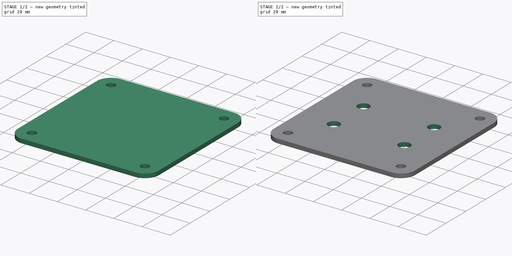
[diagram: build sequence overview — one tinted view per stage of 2, left to right]
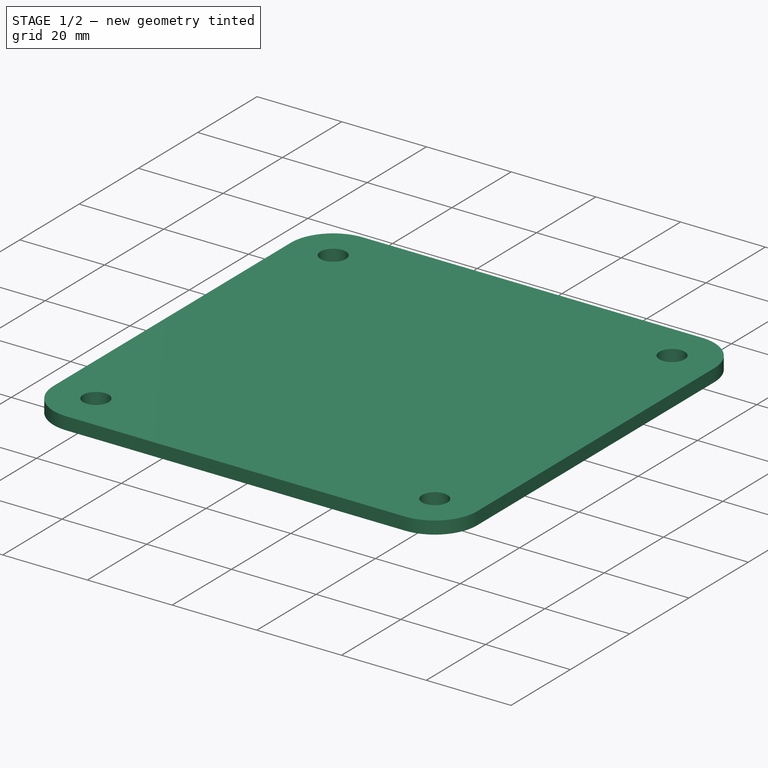
[diagram: stage 1 of 2 — iso view after this stage's code; geometry added in this stage tinted green]
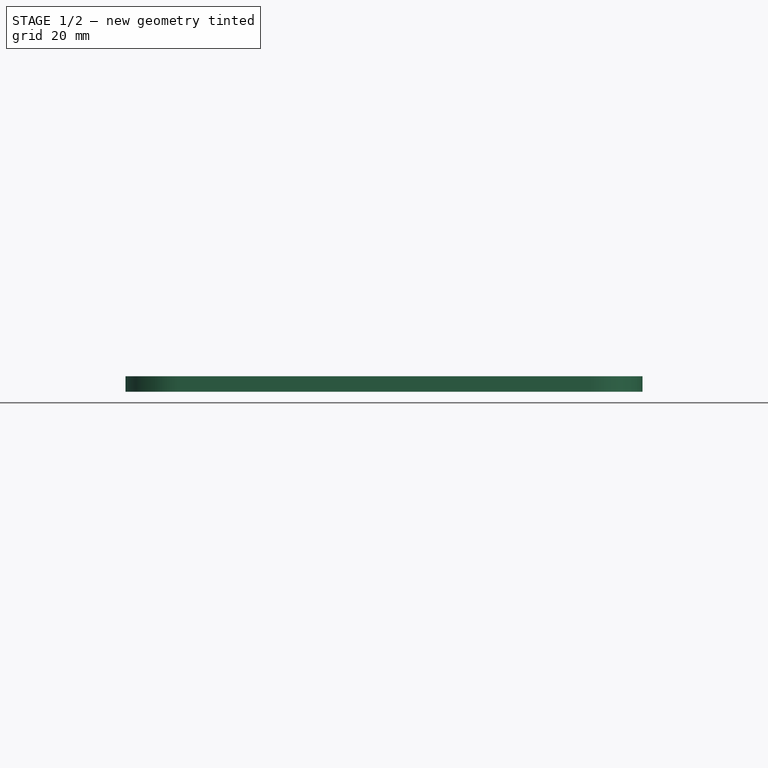
[diagram: stage 1 of 2 — front view after this stage's code; geometry added in this stage tinted green]
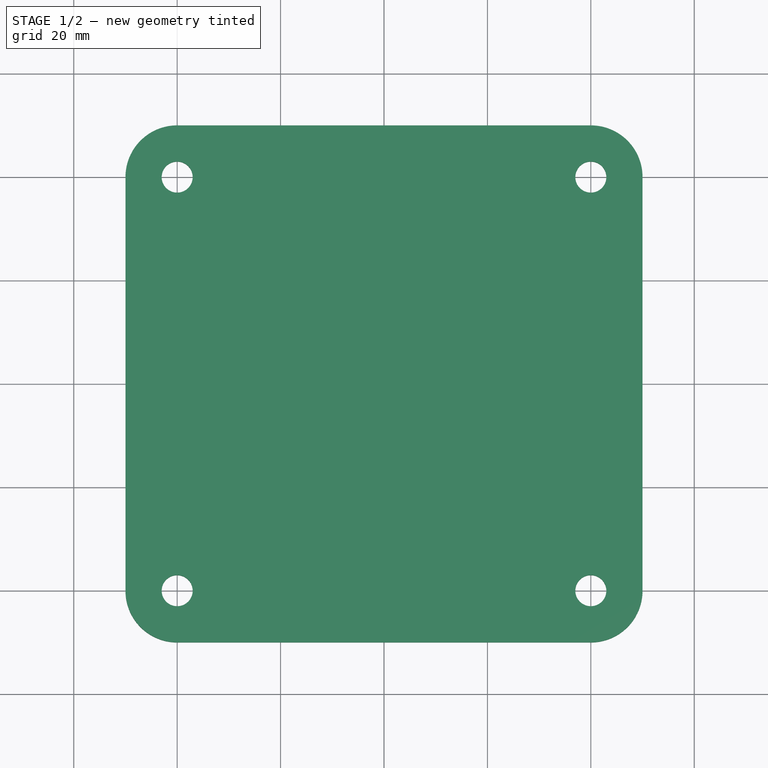
[diagram: stage 1 of 2 — top view after this stage's code; geometry added in this stage tinted green]
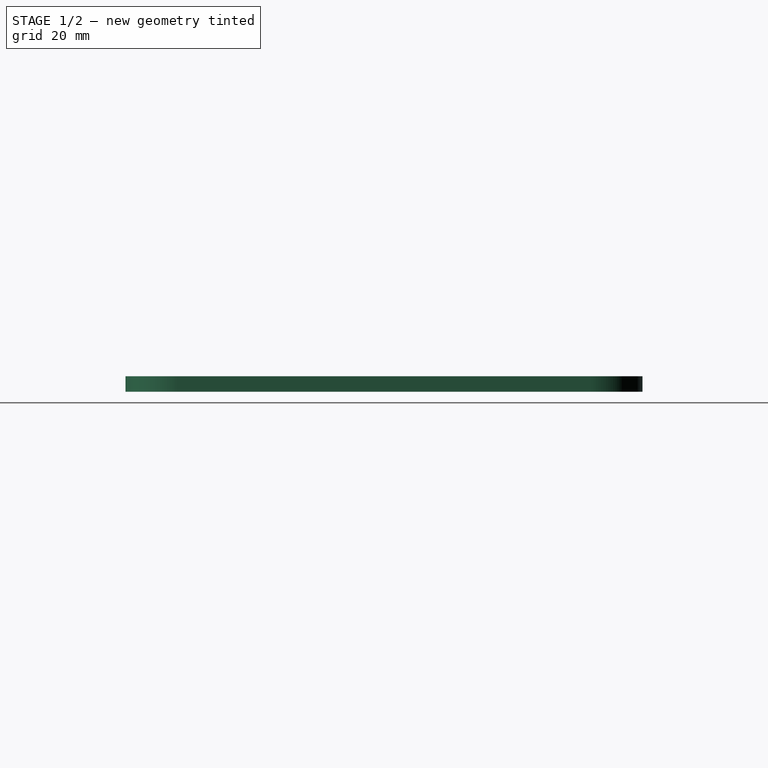
[diagram: stage 1 of 2 — right view after this stage's code; geometry added in this stage tinted green]
FCSTD DOCUMENT  (FreeCAD 0.19R24291 (Git))
Label: speaker_jack_panel
License: All rights reserved
LicenseURL: http://en.wikipedia.org/wiki/All_rights_reserved
objects: Sketcher::SketchObject×3, PartDesign::Pocket×2, PartDesign::Plane×1, PartDesign::Pad×1, PartDesign::Body×1
note: 11 computed .brp shape members not serialized (recipe doc carries the construction recipe); baked Part::Feature solids carry a one-line shape summary decoded from their .brp

FEATURE [Sketcher::SketchObject] Sketch  label="Panel S"
  FullyConstrained = true
  MapMode = 5
  Support = -> [XY_Plane]
  sketch-geometry (8):
    g0: LineSegment StartX=-40 StartY=50 StartZ=0 EndX=40 EndY=50 EndZ=0
    g1: LineSegment StartX=50 StartY=40 StartZ=0 EndX=50 EndY=-40 EndZ=0
    g2: LineSegment StartX=40 StartY=-50 StartZ=0 EndX=-40 EndY=-50 EndZ=0
    g3: LineSegment StartX=-50 StartY=-40 StartZ=0 EndX=-50 EndY=40 EndZ=0
    g4: ArcOfCircle CenterX=40 CenterY=40 CenterZ=0 NormalX=0 NormalY=0 NormalZ=1 AngleXU=0 Radius=10 StartAngle=1.415e-13 EndAngle=1.5708
    g5: ArcOfCircle CenterX=-40 CenterY=40 CenterZ=0 NormalX=0 NormalY=0 NormalZ=1 AngleXU=0 Radius=10 StartAngle=1.5708 EndAngle=3.14159
    g6: ArcOfCircle CenterX=-40 CenterY=-40 CenterZ=0 NormalX=0 NormalY=0 NormalZ=1 AngleXU=0 Radius=10 StartAngle=3.14159 EndAngle=4.71239
    g7: ArcOfCircle CenterX=40 CenterY=-40 CenterZ=0 NormalX=0 NormalY=0 NormalZ=1 AngleXU=0 Radius=10 StartAngle=4.71239 EndAngle=6.28319
  constraints (18):
    c: Horizontal(g2)
    c: Vertical(g3)
    c: Tangent(g0,g4) = 1.5708
    c: Tangent(g1,g4) = 1.5708
    c: Tangent(g0,g5) = 1.5708
    c: Tangent(g3,g5) = 1.5708
    c: Tangent(g3,g6) = 1.5708
    c: Tangent(g2,g6) = 1.5708
    c: Tangent(g2,g7) = 1.5708
    c: Tangent(g1,g7) = 1.5708
    c: Equal(g5,g4)
    c: Equal(g4,g7)
    c: Equal(g7,g6)
    c: DistanceX(g3,g1) = 100
    c: DistanceY(g2,g0) = 100
    c: Symmetric(g1,g1,g-1)
    c: Symmetric(g3,g1,g-2)
    c: Radius(g6) = 10
FEATURE [PartDesign::Plane] DatumPlane  label="Panel Surface"
  AttachmentOffset = pos=(0,0,3) rot=(0,0,1;0rad)
  Length = 120
  MapMode = 5
  Placement = pos=(0,0,3) rot=(0,0,1;0rad)
  ResizeMode = 0
  Support = -> [XY_Plane]
  Width = 120
FEATURE [PartDesign::Pad] Pad  label="Panel"
  Direction = (1,1,1)
  Length = 10
  Length2 = 100
  Profile = -> Sketch
  Type = 3
  UpToFace = -> DatumPlane
FEATURE [Sketcher::SketchObject] Sketch001  label="Mounting Holes S"
  FullyConstrained = true
  MapMode = 5
  Placement = pos=(0,0,3) rot=(0,0,1;0rad)
  Support = -> [DatumPlane]
  sketch-geometry (8):
    g0: Circle CenterX=-40 CenterY=40 CenterZ=0 NormalX=0 NormalY=0 NormalZ=1 AngleXU=0 Radius=3
    g1: Circle CenterX=40 CenterY=40 CenterZ=0 NormalX=0 NormalY=0 NormalZ=1 AngleXU=0 Radius=3
    g2: Circle CenterX=-40 CenterY=-40 CenterZ=0 NormalX=0 NormalY=0 NormalZ=1 AngleXU=0 Radius=3
    g3: Circle CenterX=40 CenterY=-40 CenterZ=0 NormalX=0 NormalY=0 NormalZ=1 AngleXU=0 Radius=3
    g4: LineSegment StartX=-40 StartY=40 StartZ=0 EndX=40 EndY=40 EndZ=0
    g5: LineSegment StartX=40 StartY=40 StartZ=0 EndX=40 EndY=-40 EndZ=0
    g6: LineSegment StartX=40 StartY=-40 StartZ=0 EndX=-40 EndY=-40 EndZ=0
    g7: LineSegment StartX=-40 StartY=-40 StartZ=0 EndX=-40 EndY=40 EndZ=0
  constraints (18):
    c: Equal(g0,g1)
    c: Equal(g1,g2)
    c: Equal(g2,g3)
    c: Diameter(g1) = 6
    c: Coincident(g4,g5)
    c: Coincident(g5,g6)
    c: Coincident(g6,g7)
    c: Coincident(g7,g4)
    c: Horizontal(g6)
    c: Vertical(g7)
    c: Symmetric(g4,g4,g-2)
    c: Symmetric(g4,g5,g-1)
    c: Coincident(g0,g4)
    c: Coincident(g1,g4)
    c: Coincident(g6,g2)
    c: Coincident(g5,g3)
    c: DistanceX(g4,g4) = 80
    c: DistanceY(g5,g5) = 80
FEATURE [PartDesign::Pocket] Pocket  label="Mounting Holes"
  BaseFeature = -> Pad
  Length = 0
  Length2 = 100
  Profile = -> Sketch001
  Type = 3
  UpToFace = -> XY_Plane
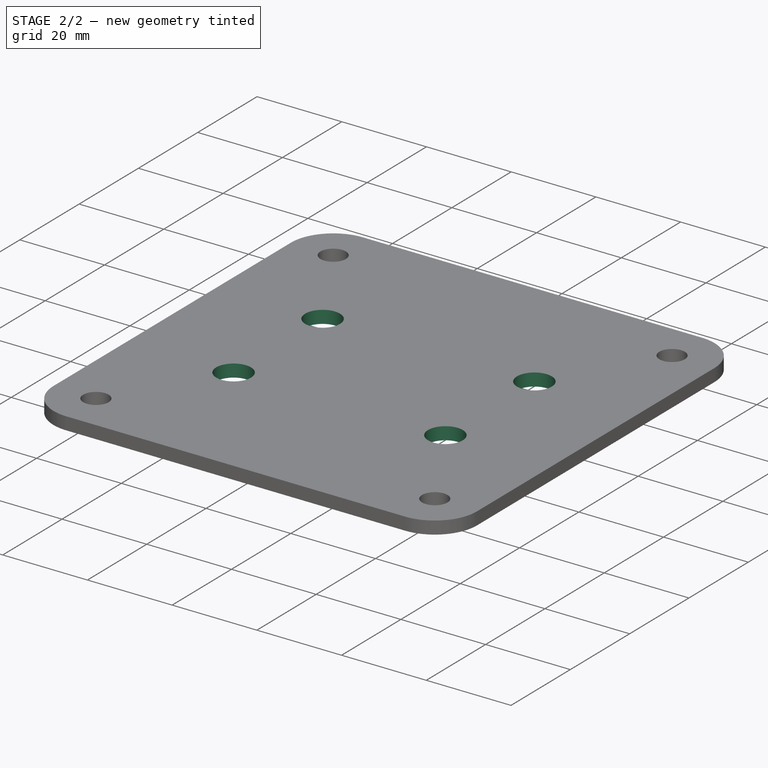
[diagram: stage 2 of 2 — iso view after this stage's code; geometry added in this stage tinted green]
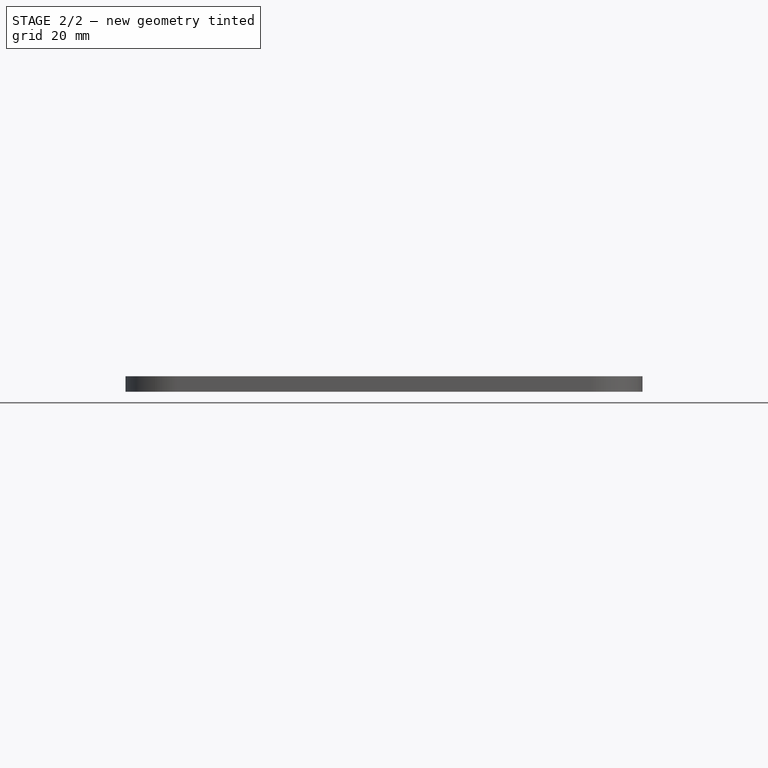
[diagram: stage 2 of 2 — front view after this stage's code; geometry added in this stage tinted green]
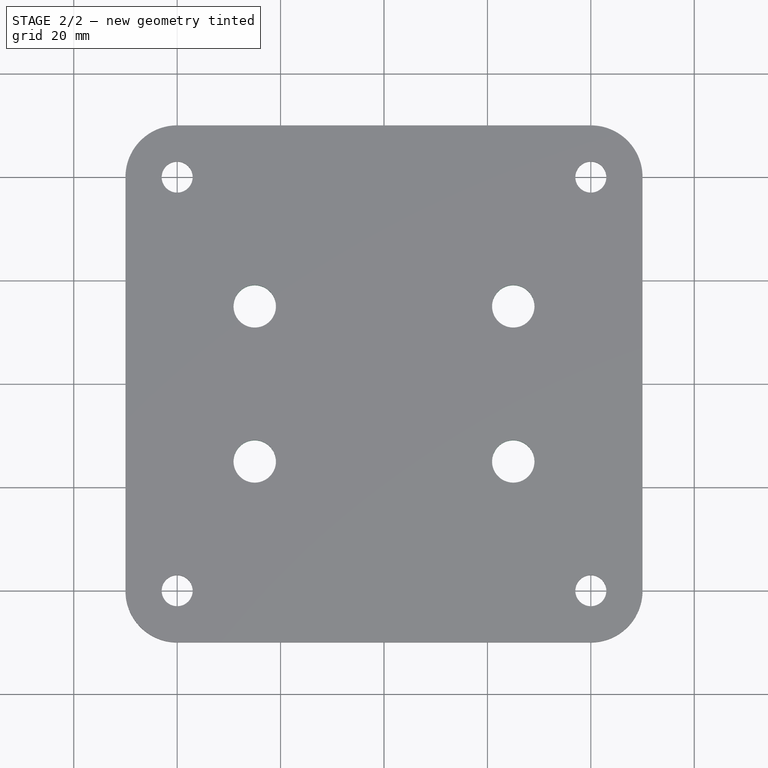
[diagram: stage 2 of 2 — top view after this stage's code; geometry added in this stage tinted green]
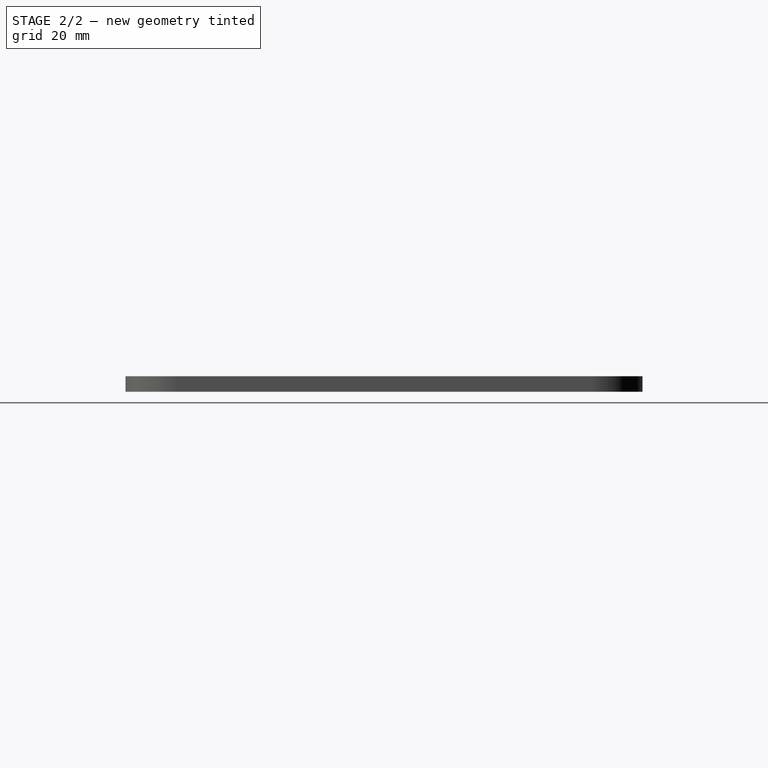
[diagram: stage 2 of 2 — right view after this stage's code; geometry added in this stage tinted green]
FEATURE [Sketcher::SketchObject] Sketch002  label="Jack Mounting Holes S"
  FullyConstrained = true
  MapMode = 5
  Placement = pos=(0,0,3) rot=(0,0,1;0rad)
  Support = -> [DatumPlane]
  sketch-geometry (8):
    g0: Circle CenterX=-25 CenterY=15 CenterZ=0 NormalX=0 NormalY=0 NormalZ=1 AngleXU=0 Radius=4.1
    g1: Circle CenterX=-25 CenterY=-15 CenterZ=0 NormalX=0 NormalY=0 NormalZ=1 AngleXU=0 Radius=4.1
    g2: Circle CenterX=25 CenterY=15 CenterZ=0 NormalX=0 NormalY=0 NormalZ=1 AngleXU=0 Radius=4.1
    g3: Circle CenterX=25 CenterY=-15 CenterZ=0 NormalX=0 NormalY=0 NormalZ=1 AngleXU=0 Radius=4.1
    g4: LineSegment StartX=-25 StartY=15 StartZ=0 EndX=25 EndY=15 EndZ=0
    g5: LineSegment StartX=25 StartY=15 StartZ=0 EndX=25 EndY=-15 EndZ=0
    g6: LineSegment StartX=25 StartY=-15 StartZ=0 EndX=-25 EndY=-15 EndZ=0
    g7: LineSegment StartX=-25 StartY=-15 StartZ=0 EndX=-25 EndY=15 EndZ=0
  constraints (18):
    c: Equal(g0,g1)
    c: Equal(g1,g2)
    c: Equal(g2,g3)
    c: Diameter(g2) = 8.2
    c: Coincident(g4,g5)
    c: Coincident(g5,g6)
    c: Coincident(g6,g7)
    c: Coincident(g7,g4)
    c: Horizontal(g6)
    c: Vertical(g7)
    c: Coincident(g2,g4)
    c: Coincident(g0,g4)
    c: Coincident(g1,g6)
    c: Coincident(g3,g5)
    c: Symmetric(g2,g3,g-1)
    c: Symmetric(g2,g0,g-2)
    c: DistanceY(g5,g5) = 30
    c: DistanceX(g4,g4) = 50
FEATURE [PartDesign::Pocket] Pocket001  label="Jack Mounting Holes"
  BaseFeature = -> Pocket
  Length = 0
  Length2 = 100
  Profile = -> Sketch002
  Type = 3
  UpToFace = -> XY_Plane
FEATURE [PartDesign::Body] Body  label="Speaker Jack Panel"
  Group = -> [DatumPlane,Sketch,Pad,Sketch001,Pocket,Sketch002,Pocket001]
  Origin = -> Origin
  Tip = -> Pocket001
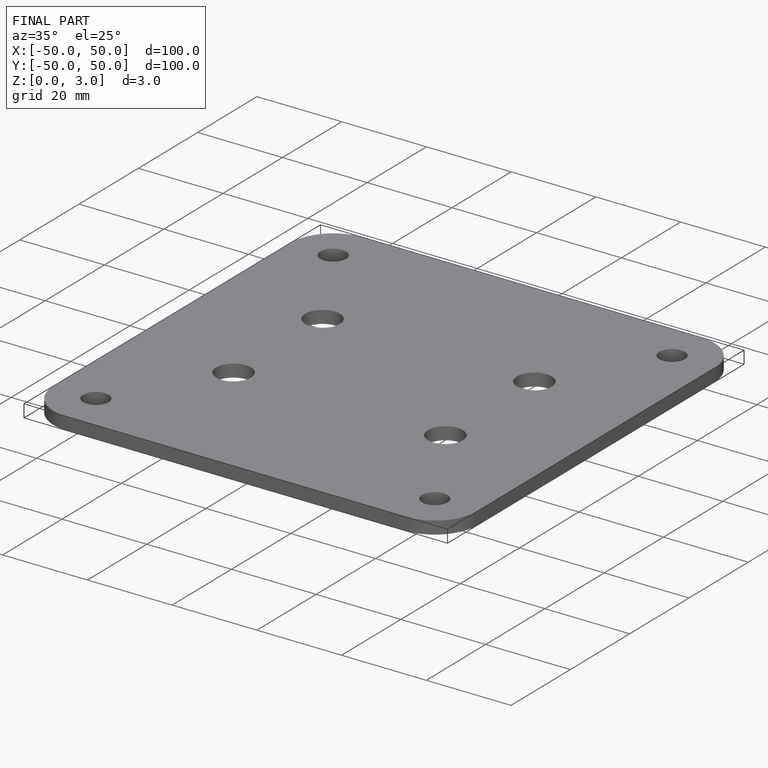
[diagram: finished part — iso view with bounding-box wireframe]
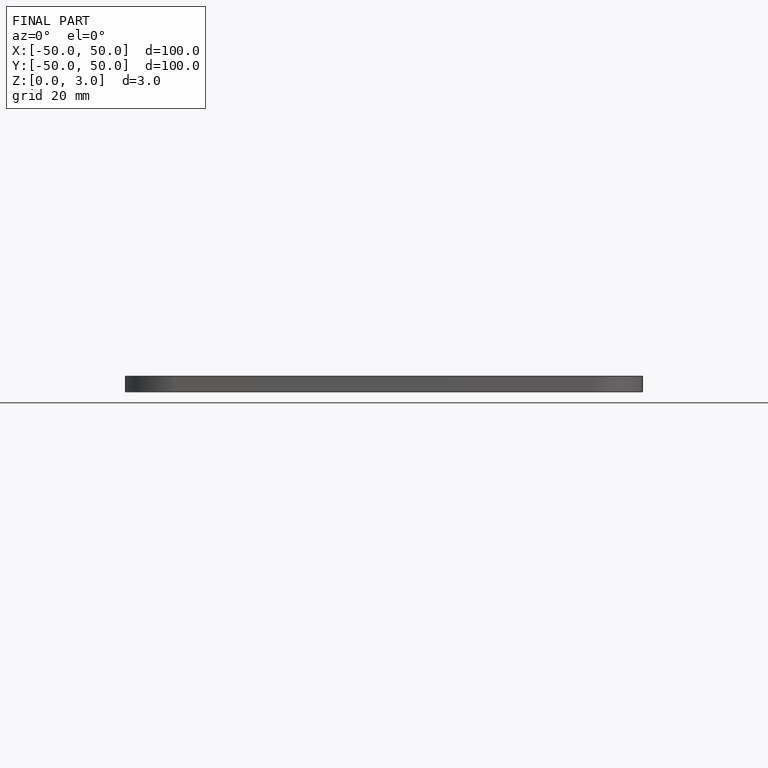
[diagram: finished part — front view with bounding-box wireframe]
